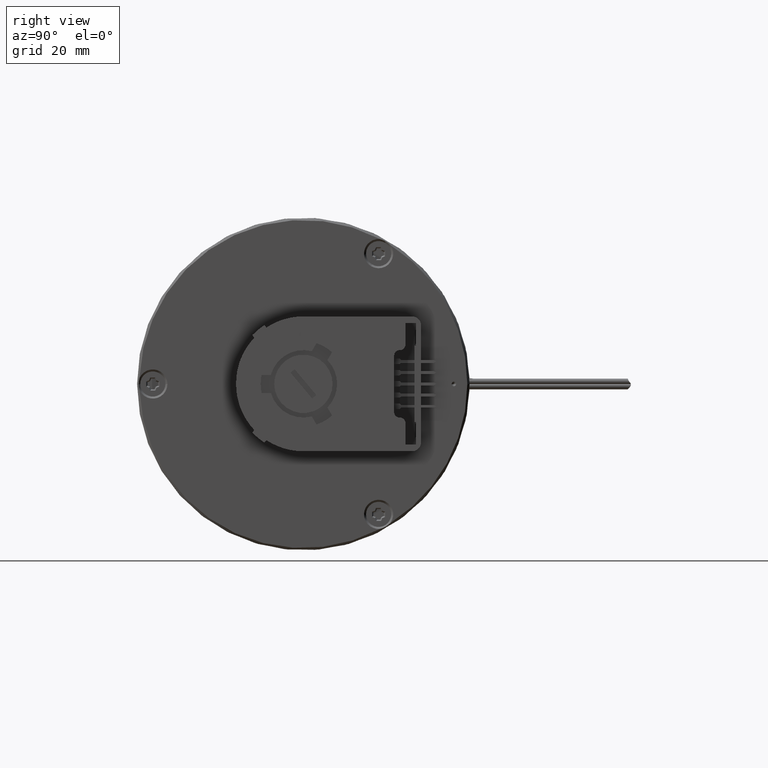
[diagram: clean part render]
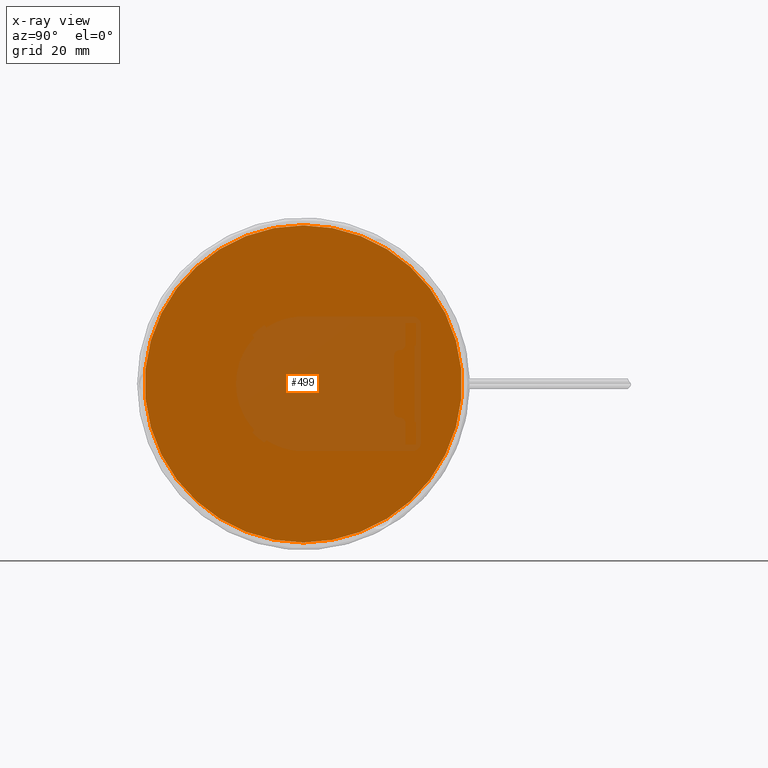
[diagram: x-ray — body ghosted, one internal face saturated and labeled with its STEP entity id]
A machine part, right view, then the same camera in x-ray: the body is ghosted and one INTERNAL B-rep face — a face not visible from any outside direction — is saturated and labeled: STEP entity #499.
In plain terms, the highlighted planar face has unit normal (-1, 0, 0).
Its self-contained STEP definition (entity closure, byte-faithful):
#180=CARTESIAN_POINT('',(4.34E1,0.E0,0.E0));
#181=DIRECTION('',(-1.E0,0.E0,0.E0));
#182=DIRECTION('',(0.E0,0.E0,-1.E0));
#183=AXIS2_PLACEMENT_3D('',#180,#181,#182);
#185=CARTESIAN_POINT('',(4.34E1,0.E0,0.E0));
#186=DIRECTION('',(-1.E0,0.E0,0.E0));
#187=DIRECTION('',(0.E0,0.E0,1.E0));
#188=AXIS2_PLACEMENT_3D('',#185,#186,#187);
#214=CARTESIAN_POINT('',(4.34E1,0.E0,-3.53E1));
#215=CARTESIAN_POINT('',(4.34E1,-1.396079797757E-14,3.53E1));
#216=VERTEX_POINT('',#214);
#217=VERTEX_POINT('',#215);
#490=CARTESIAN_POINT('',(4.34E1,0.E0,0.E0));
#491=DIRECTION('',(-1.E0,0.E0,0.E0));
#492=DIRECTION('',(0.E0,0.E0,-1.E0));
#493=AXIS2_PLACEMENT_3D('',#490,#491,#492);
#494=PLANE('',#493);
#495=ORIENTED_EDGE('',*,*,#294,.T.);
#496=ORIENTED_EDGE('',*,*,#331,.T.);
#497=EDGE_LOOP('',(#495,#496));
#498=FACE_OUTER_BOUND('',#497,.F.);
#499=ADVANCED_FACE('',(#498),#494,.F.);
#184=CIRCLE('',#183,3.53E1);
#189=CIRCLE('',#188,3.53E1);
#294=EDGE_CURVE('',#216,#217,#184,.T.);
#331=EDGE_CURVE('',#217,#216,#189,.T.);